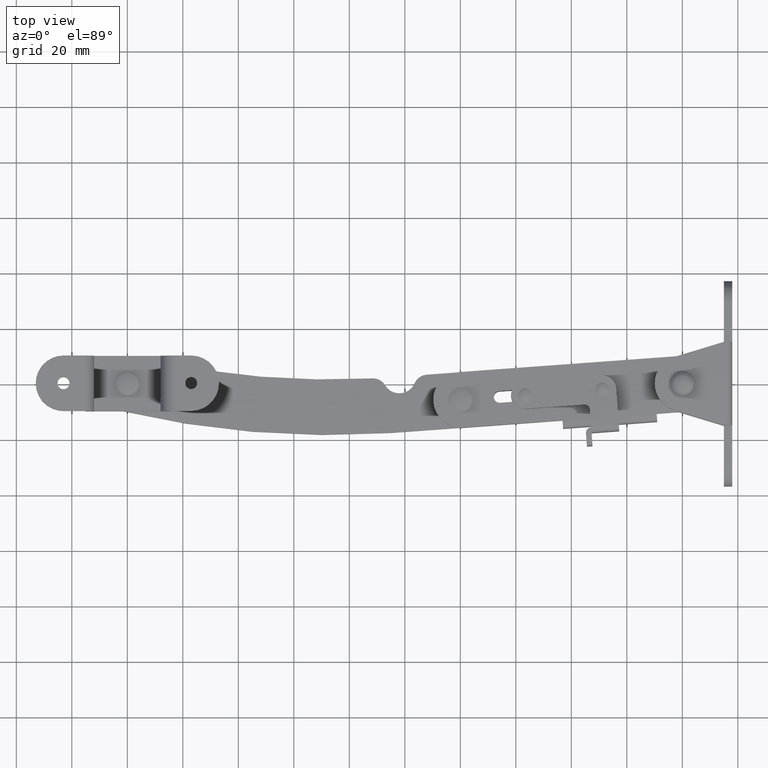
[diagram: clean part render]
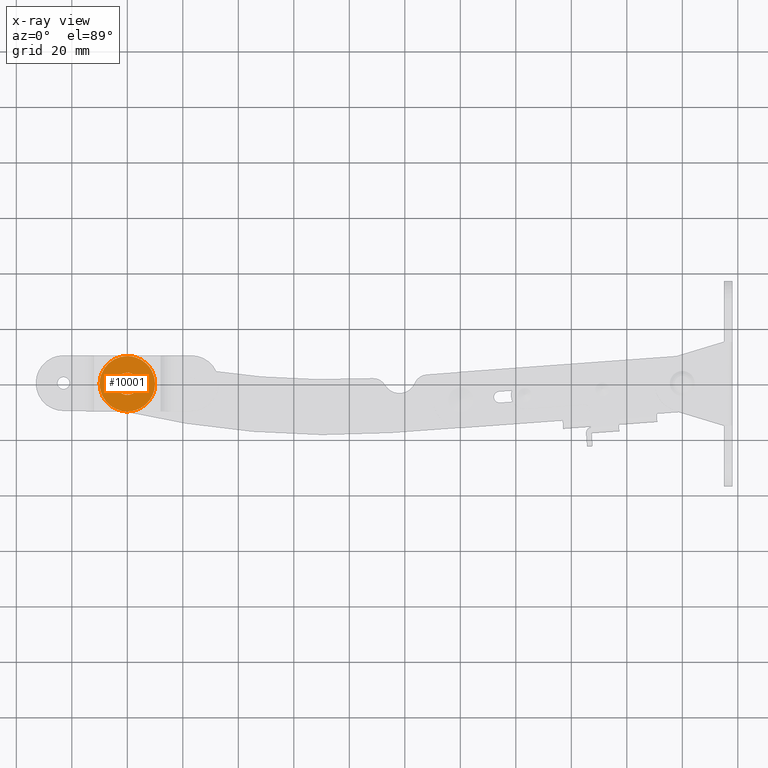
[diagram: x-ray — body ghosted, one internal face saturated and labeled with its STEP entity id]
A machine part, top view, then the same camera in x-ray: the body is ghosted and one INTERNAL B-rep face — a face not visible from any outside direction — is saturated and labeled: STEP entity #10001.
In plain terms, the highlighted face is a freeform B-spline surface patch.
Its self-contained STEP definition (entity closure, byte-faithful):
#9603=CARTESIAN_POINT('',(-196.0,0.000020999999975,2.0));
#9604=VERTEX_POINT('',#9603);
#9605=CARTESIAN_POINT('',(-197.210272945890690,2.866624098320356,2.000000000016031));
#9606=VERTEX_POINT('',#9605);
#9607=CARTESIAN_POINT('',(-196.0,0.000020999999975,2.0));
#9608=CARTESIAN_POINT('',(-195.999535247757110,0.499468284170501,2.000000000002792));
#9609=CARTESIAN_POINT('',(-196.202274925953110,1.564366587291009,2.000000000008752));
#9610=CARTESIAN_POINT('',(-196.804030938313190,2.472401658633690,2.000000000013826));
#9611=CARTESIAN_POINT('',(-197.210272945890690,2.866624098320356,2.000000000016031));
#9612=B_SPLINE_CURVE_WITH_KNOTS('',3,(#9607,#9608,#9609,#9610,#9611),.UNSPECIFIED.,.F.,.U.,(4,1,4),(0.000000108854622,1.498167612033593,3.196036431358039),.UNSPECIFIED.);
#9613=EDGE_CURVE('',#9604,#9606,#9612,.T.);
#9615=CARTESIAN_POINT('',(-199.999995178084500,-3.999978999997119,2.0));
#9616=VERTEX_POINT('',#9615);
#9617=CARTESIAN_POINT('',(-199.999995178084500,-3.999978999997119,2.0));
#9618=CARTESIAN_POINT('',(-199.574556548100790,-4.000181309704555,2.0));
#9619=CARTESIAN_POINT('',(-198.691082428364010,-3.857821112195206,1.999999999999997));
#9620=CARTESIAN_POINT('',(-197.490082604769900,-3.216108939741508,2.000000000000006));
#9621=CARTESIAN_POINT('',(-196.642707553773700,-2.280930173107443,2.0));
#9622=CARTESIAN_POINT('',(-196.121266041940000,-1.177938575605686,1.999999999999995));
#9623=CARTESIAN_POINT('',(-195.999768313998200,-0.425422344569829,2.000000000000004));
#9624=CARTESIAN_POINT('',(-196.0,0.000020999999975,2.0));
#9625=B_SPLINE_CURVE_WITH_KNOTS('',3,(#9617,#9618,#9619,#9620,#9621,#9622,#9623,#9624),.UNSPECIFIED.,.F.,.U.,(4,1,1,1,1,4),(0.000000418743761,1.276300763243722,2.650786218417505,4.025251273549609,5.007047381490700,6.283340259590994),.UNSPECIFIED.);
#9626=EDGE_CURVE('',#9616,#9604,#9625,.T.);
#9628=CARTESIAN_POINT('',(-204.0,0.000020999999975,2.0));
#9629=VERTEX_POINT('',#9628);
#9630=CARTESIAN_POINT('',(-204.0,0.000020999999975,2.0));
#9631=CARTESIAN_POINT('',(-204.000085302729900,-0.359951131045762,2.0));
#9632=CARTESIAN_POINT('',(-203.893379165018390,-1.145312952524947,2.000000000000004));
#9633=CARTESIAN_POINT('',(-203.382892012749690,-2.260390950146492,1.999999999999996));
#9634=CARTESIAN_POINT('',(-202.593217840964710,-3.110090567392758,2.000000000000012));
#9635=CARTESIAN_POINT('',(-201.471914590706490,-3.801079865137604,1.999999999999979));
#9636=CARTESIAN_POINT('',(-200.589258601292500,-4.000933953943915,2.000000000000008));
#9637=CARTESIAN_POINT('',(-199.999995178084500,-3.999978999997119,2.0));
#9638=B_SPLINE_CURVE_WITH_KNOTS('',3,(#9630,#9631,#9632,#9633,#9634,#9635,#9636,#9637),.UNSPECIFIED.,.F.,.U.,(4,1,1,1,1,4),(0.000000412141185,1.079920868304717,2.356299818550098,3.632549552960801,4.516152208496678,6.283345695149468),.UNSPECIFIED.);
#9639=EDGE_CURVE('',#9629,#9616,#9638,.T.);
#9641=CARTESIAN_POINT('',(-202.702361703765890,2.949131175824305,1.999999999983746));
#9642=VERTEX_POINT('',#9641);
#9643=CARTESIAN_POINT('',(-202.702361703765890,2.949131175824305,1.999999999983746));
#9644=CARTESIAN_POINT('',(-202.982607041159100,2.692515892404809,1.999999999985160));
#9645=CARTESIAN_POINT('',(-203.402670965923510,2.179598144707451,1.999999999987988));
#9646=CARTESIAN_POINT('',(-203.876465181472210,1.174305054315158,1.999999999993527));
#9647=CARTESIAN_POINT('',(-204.000320276839800,0.449140944464925,1.999999999997531));
#9648=CARTESIAN_POINT('',(-204.0,0.000020999999975,2.0));
#9649=B_SPLINE_CURVE_WITH_KNOTS('',3,(#9643,#9644,#9645,#9646,#9647,#9648),.UNSPECIFIED.,.F.,.U.,(4,1,1,4),(0.000000130738635,1.139954906545527,1.968972553236126,3.316218706854723),.UNSPECIFIED.);
#9650=EDGE_CURVE('',#9642,#9629,#9649,.T.);
#9729=CARTESIAN_POINT('',(-200.000004821915610,4.000020999997068,2.0));
#9730=VERTEX_POINT('',#9729);
#9731=CARTESIAN_POINT('',(-197.210272945890690,2.866624098320356,2.000000000016031));
#9732=CARTESIAN_POINT('',(-197.601656352098390,3.248460839244908,2.000000000013778));
#9733=CARTESIAN_POINT('',(-198.488809020739100,3.811514060363622,2.000000000008692));
#9734=CARTESIAN_POINT('',(-199.517562781170600,4.000382375725653,2.000000000002771));
#9735=CARTESIAN_POINT('',(-200.000004821915610,4.000020999997068,2.0));
#9736=B_SPLINE_CURVE_WITH_KNOTS('',3,(#9731,#9732,#9733,#9734,#9735),.UNSPECIFIED.,.F.,.U.,(4,1,4),(0.000000123685229,1.640100507190210,3.087310561868668),.UNSPECIFIED.);
#9737=EDGE_CURVE('',#9606,#9730,#9736,.T.);
#9759=CARTESIAN_POINT('',(-200.000004821915610,4.000020999997068,2.0));
#9760=CARTESIAN_POINT('',(-200.401787591361990,4.000147262846415,1.999999999997584));
#9761=CARTESIAN_POINT('',(-201.390843216150610,3.849920563295244,1.999999999991633));
#9762=CARTESIAN_POINT('',(-202.269860350719990,3.346595637689867,1.999999999986349));
#9763=CARTESIAN_POINT('',(-202.702361703765890,2.949131175824305,1.999999999983746));
#9764=B_SPLINE_CURVE_WITH_KNOTS('',3,(#9759,#9760,#9761,#9762,#9763),.UNSPECIFIED.,.F.,.U.,(4,1,4),(0.000000101514764,1.205413580060999,2.967121849058401),.UNSPECIFIED.);
#9765=EDGE_CURVE('',#9730,#9642,#9764,.T.);
#9796=CARTESIAN_POINT('',(-190.0,0.000020999999975,2.0));
#9797=VERTEX_POINT('',#9796);
#9798=CARTESIAN_POINT('',(-193.025680434650500,7.166530016434645,2.000000000076085));
#9799=VERTEX_POINT('',#9798);
#9800=CARTESIAN_POINT('',(-190.0,0.000020999999975,2.0));
#9801=CARTESIAN_POINT('',(-189.999526932692990,0.998812941046267,2.000000000010606));
#9802=CARTESIAN_POINT('',(-190.251561701886690,2.663071019204114,2.000000000028270));
#9803=CARTESIAN_POINT('',(-191.292653720771800,5.128963639201200,2.000000000054455));
#9804=CARTESIAN_POINT('',(-192.309580320197910,6.470260362056852,2.000000000068690));
#9805=CARTESIAN_POINT('',(-193.025680434650500,7.166530016434645,2.000000000076085));
#9806=B_SPLINE_CURVE_WITH_KNOTS('',3,(#9800,#9801,#9802,#9803,#9804,#9805),.UNSPECIFIED.,.F.,.U.,(4,1,1,4),(0.000000076489381,2.996227234505914,4.993708714786916,7.989935872755322),.UNSPECIFIED.);
#9807=EDGE_CURVE('',#9797,#9799,#9806,.T.);
#9870=CARTESIAN_POINT('',(-206.755902472714300,7.372795026440203,1.999999999969929));
#9871=VERTEX_POINT('',#9870);
#9877=CARTESIAN_POINT('',(-210.0,0.000020999999975,2.0));
#9878=VERTEX_POINT('',#9877);
#9879=CARTESIAN_POINT('',(-206.755902472714300,7.372795026440203,1.999999999969929));
#9880=CARTESIAN_POINT('',(-207.265334700840410,6.906128769857822,1.999999999971826));
#9881=CARTESIAN_POINT('',(-208.158036146927490,5.899084669506934,1.999999999975950));
#9882=CARTESIAN_POINT('',(-209.027208139864000,4.397164536720125,1.999999999982056));
#9883=CARTESIAN_POINT('',(-209.776457933633000,2.460928115876440,1.999999999989971));
#9884=CARTESIAN_POINT('',(-210.000595580731410,1.036407572621434,1.999999999995764));
#9885=CARTESIAN_POINT('',(-210.0,0.000020999999975,2.0));
#9886=B_SPLINE_CURVE_WITH_KNOTS('',3,(#9879,#9880,#9881,#9882,#9883,#9884,#9885),.UNSPECIFIED.,.F.,.U.,(4,1,1,1,4),(0.000000080855163,2.072594034048617,4.015690750243938,5.181463615792032,8.290372369733010),.UNSPECIFIED.);
#9887=EDGE_CURVE('',#9871,#9878,#9886,.T.);
#9889=CARTESIAN_POINT('',(-199.999996975334310,-9.999978999999568,2.0));
#9890=VERTEX_POINT('',#9889);
#9891=CARTESIAN_POINT('',(-210.0,0.000020999999975,2.0));
#9892=CARTESIAN_POINT('',(-210.000049296896490,-0.613570180841300,2.0));
#9893=CARTESIAN_POINT('',(-209.882950172827800,-1.881641637458438,2.0));
#9894=CARTESIAN_POINT('',(-209.356392149644510,-3.697626477481931,1.999999999999999));
#9895=CARTESIAN_POINT('',(-208.589828785726890,-5.197343945490573,2.000000000000004));
#9896=CARTESIAN_POINT('',(-207.605513004131100,-6.559182173974025,1.999999999999989));
#9897=CARTESIAN_POINT('',(-206.413905827900690,-7.750851438145364,2.000000000000003));
#9898=CARTESIAN_POINT('',(-204.747120276535210,-8.879435919228847,2.0));
#9899=CARTESIAN_POINT('',(-202.617846738820790,-9.761525732265442,1.999999999999998));
#9900=CARTESIAN_POINT('',(-200.940862039039100,-10.000315096229381,2.000000000000006));
#9901=CARTESIAN_POINT('',(-199.999996975334310,-9.999978999999568,2.0));
#9902=B_SPLINE_CURVE_WITH_KNOTS('',3,(#9891,#9892,#9893,#9894,#9895,#9896,#9897,#9898,#9899,#9900,#9901),.UNSPECIFIED.,.F.,.U.,(4,1,1,1,1,1,1,1,4),(0.000000288878200,1.840777107465394,3.804294767622038,5.645104677498642,6.872282566299527,8.835773211853216,10.676566029024841,12.885529416347900,15.708063533534309),.UNSPECIFIED.);
#9903=EDGE_CURVE('',#9878,#9890,#9902,.T.);
#9905=CARTESIAN_POINT('',(-199.999996975334310,-9.999978999999568,2.0));
#9906=CARTESIAN_POINT('',(-199.181857497335300,-10.000198869681180,2.000000000000007));
#9907=CARTESIAN_POINT('',(-197.791174987487890,-9.828262158326737,1.999999999999987));
#9908=CARTESIAN_POINT('',(-195.616876235851810,-9.080526843234310,2.000000000000012));
#9909=CARTESIAN_POINT('',(-193.789450742970300,-7.954477189590656,1.999999999999983));
#9910=CARTESIAN_POINT('',(-192.278223125131800,-6.442921511412356,2.000000000000016));
#9911=CARTESIAN_POINT('',(-191.233033235587190,-4.919422547370395,1.999999999999967));
#9912=CARTESIAN_POINT('',(-190.287565796583490,-2.822128634685359,2.000000000000056));
#9913=CARTESIAN_POINT('',(-189.999373330915690,-1.104533208868101,1.999999999999933));
#9914=CARTESIAN_POINT('',(-190.0,0.000020999999975,2.0));
#9915=B_SPLINE_CURVE_WITH_KNOTS('',3,(#9905,#9906,#9907,#9908,#9909,#9910,#9911,#9912,#9913,#9914),.UNSPECIFIED.,.F.,.U.,(4,1,1,1,1,1,1,4),(0.000000289798798,2.454370526619515,4.172460248006624,6.872281078489317,8.835771298854631,10.553820930310771,12.394657414035480,15.708060124010050),.UNSPECIFIED.);
#9916=EDGE_CURVE('',#9890,#9797,#9915,.T.);
#9935=CARTESIAN_POINT('',(-200.000003024665800,10.000020999999521,2.0));
#9936=VERTEX_POINT('',#9935);
#9937=CARTESIAN_POINT('',(-193.025680434650500,7.166530016434645,2.000000000076085));
#9938=CARTESIAN_POINT('',(-193.601735182447810,7.727364175275997,2.000000000069800));
#9939=CARTESIAN_POINT('',(-194.954442222522200,8.758125576050412,2.000000000055044));
#9940=CARTESIAN_POINT('',(-197.346980439736090,9.763973984102721,2.000000000028948));
#9941=CARTESIAN_POINT('',(-199.115623854703610,10.000250006814390,2.000000000009647));
#9942=CARTESIAN_POINT('',(-200.000003024665800,10.000020999999521,2.0));
#9943=B_SPLINE_CURVE_WITH_KNOTS('',3,(#9937,#9938,#9939,#9940,#9941,#9942),.UNSPECIFIED.,.F.,.U.,(4,1,1,4),(0.000000072931334,2.411920380371690,5.065017696101935,7.718128475451019),.UNSPECIFIED.);
#9944=EDGE_CURVE('',#9799,#9936,#9943,.T.);
#9946=CARTESIAN_POINT('',(-200.000003024665800,10.000020999999521,2.0));
#9947=CARTESIAN_POINT('',(-201.197831567012000,10.001065456347900,1.999999999994671));
#9948=CARTESIAN_POINT('',(-203.051477661097890,9.662688751127400,1.999999999986415));
#9949=CARTESIAN_POINT('',(-205.280120806480600,8.564247229863526,1.999999999976504));
#9950=CARTESIAN_POINT('',(-206.300203252410200,7.790453969951766,1.999999999971948));
#9951=CARTESIAN_POINT('',(-206.755902472714300,7.372795026440203,1.999999999969929));
#9952=B_SPLINE_CURVE_WITH_KNOTS('',3,(#9946,#9947,#9948,#9949,#9950,#9951),.UNSPECIFIED.,.F.,.U.,(4,1,1,4),(0.000000067564765,3.592987909497043,5.563265935645367,7.417687938305872),.UNSPECIFIED.);
#9953=EDGE_CURVE('',#9936,#9871,#9952,.T.);
#9980=CARTESIAN_POINT('',(-189.001000038763890,10.999020961235590,2.0));
#9981=CARTESIAN_POINT('',(-210.999000497678000,10.999020961235590,2.0));
#9982=CARTESIAN_POINT('',(-189.001000038763890,-10.998979497677450,2.0));
#9983=CARTESIAN_POINT('',(-210.999000497678000,-10.998979497677450,2.0));
#9984=B_SPLINE_SURFACE_WITH_KNOTS('',1,1,((#9980,#9982),(#9981,#9983)),.UNSPECIFIED.,.F.,.F.,.U.,(2,2),(2,2),(0.0,21.998000458914081),(0.0,21.998000458913040),.UNSPECIFIED.);
#9985=ORIENTED_EDGE('',*,*,#9916,.F.);
#9986=ORIENTED_EDGE('',*,*,#9903,.F.);
#9987=ORIENTED_EDGE('',*,*,#9887,.F.);
#9988=ORIENTED_EDGE('',*,*,#9953,.F.);
#9989=ORIENTED_EDGE('',*,*,#9944,.F.);
#9990=ORIENTED_EDGE('',*,*,#9807,.F.);
#9991=EDGE_LOOP('',(#9985,#9986,#9987,#9988,#9989,#9990));
#9992=FACE_OUTER_BOUND('',#9991,.T.);
#9993=ORIENTED_EDGE('',*,*,#9639,.T.);
#9994=ORIENTED_EDGE('',*,*,#9626,.T.);
#9995=ORIENTED_EDGE('',*,*,#9613,.T.);
#9996=ORIENTED_EDGE('',*,*,#9737,.T.);
#9997=ORIENTED_EDGE('',*,*,#9765,.T.);
#9998=ORIENTED_EDGE('',*,*,#9650,.T.);
#9999=EDGE_LOOP('',(#9993,#9994,#9995,#9996,#9997,#9998));
#10000=FACE_BOUND('',#9999,.T.);
#10001=ADVANCED_FACE('',(#9992,#10000),#9984,.F.);